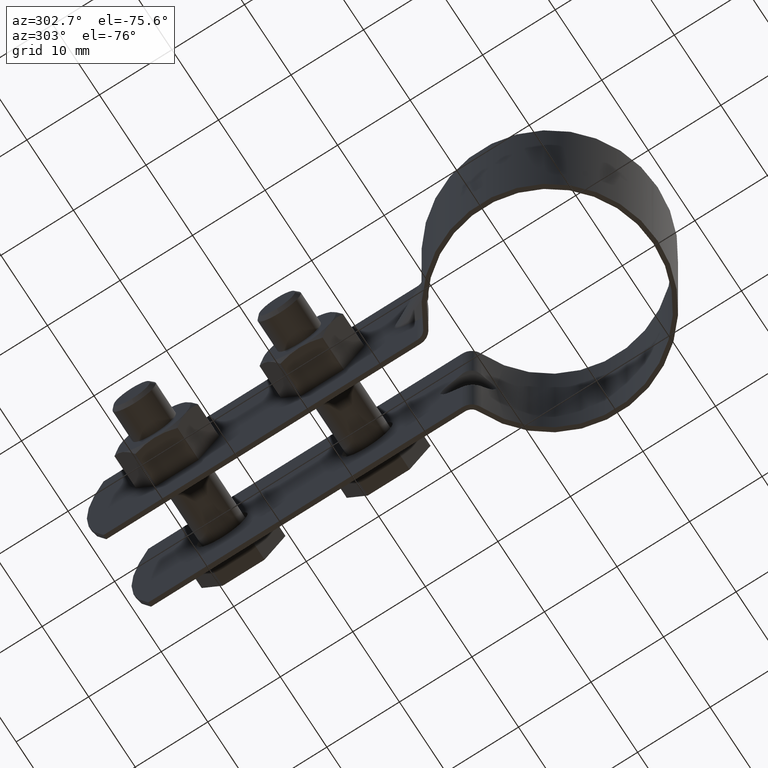
[diagram: clean part render]
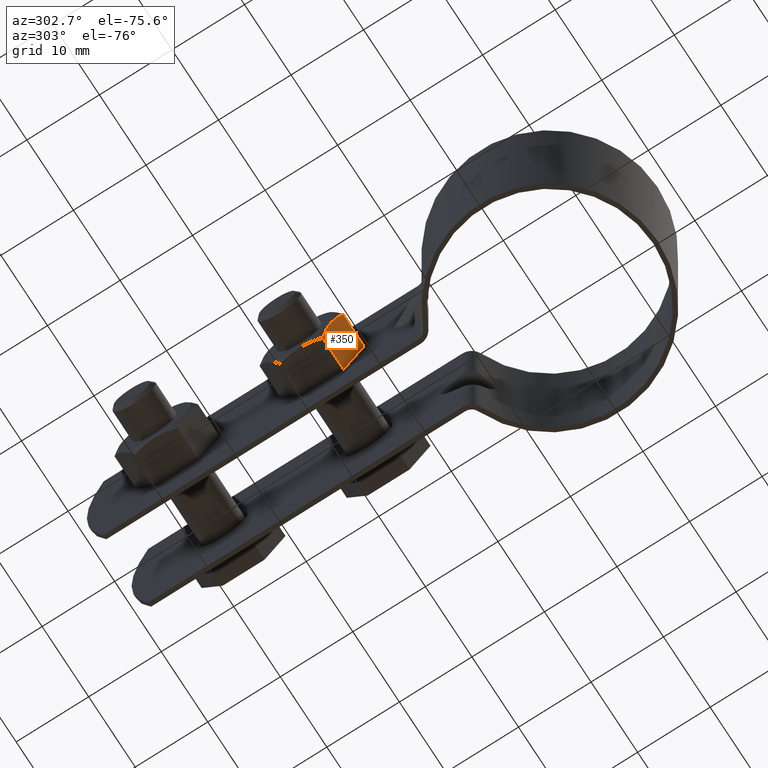
[diagram: same view with one face highlighted and labeled with its STEP entity id]
A machine part, auxiliary view. The second image highlights one B-rep face of the part: STEP entity #350.
In plain terms, the highlighted planar face has unit normal (0, 0.866, 0.5).
Its self-contained STEP definition (entity closure, byte-faithful):
#350 = ADVANCED_FACE( '', ( #558 ), #559, .F. );
#558 = FACE_OUTER_BOUND( '', #790, .T. );
#559 = PLANE( '', #791 );
#790 = EDGE_LOOP( '', ( #1490, #1491, #1492, #1493, #1494 ) );
#791 = AXIS2_PLACEMENT_3D( '', #1495, #1496, #1497 );
#1490 = ORIENTED_EDGE( '', *, *, #1795, .F. );
#1491 = ORIENTED_EDGE( '', *, *, #1828, .F. );
#1492 = ORIENTED_EDGE( '', *, *, #1829, .F. );
#1493 = ORIENTED_EDGE( '', *, *, #1802, .F. );
#1494 = ORIENTED_EDGE( '', *, *, #1822, .F. );
#1495 = CARTESIAN_POINT( '', ( -5.10000000000003, 22.2894652723808, -8.67361737988404E-016 ) );
#1496 = DIRECTION( '', ( 0.000000000000000, 0.866025403784439, 0.500000000000000 ) );
#1497 = DIRECTION( '', ( 0.000000000000000, -0.500000000000000, 0.866025403784439 ) );
#1795 = EDGE_CURVE( '', #2145, #2158, #2159, .T. );
#1802 = EDGE_CURVE( '', #2169, #2171, #2172, .T. );
#1822 = EDGE_CURVE( '', #2158, #2169, #2202, .T. );
#1828 = EDGE_CURVE( '', #2210, #2145, #2211, .T. );
#1829 = EDGE_CURVE( '', #2171, #2210, #2212, .F. );
#2145 = VERTEX_POINT( '', #2767 );
#2158 = VERTEX_POINT( '', #2786 );
#2159 = B_SPLINE_CURVE_WITH_KNOTS( '', 3, ( #2787, #2788, #2789, #2790, #2791, #2792, #2793, #2794 ), .UNSPECIFIED., .F., .F., ( 4, 2, 2, 4 ), ( 0.00287277010488779, 0.00358771851305245, 0.00430266692121712, 0.00573256373754644 ), .UNSPECIFIED. );
#2169 = VERTEX_POINT( '', #2805 );
#2171 = VERTEX_POINT( '', #2807 );
#2172 = LINE( '', #2808, #2809 );
#2202 = LINE( '', #2873, #2874 );
#2210 = VERTEX_POINT( '', #2894 );
#2211 = B_SPLINE_CURVE_WITH_KNOTS( '', 3, ( #2895, #2896, #2897, #2898 ), .UNSPECIFIED., .F., .F., ( 4, 4 ), ( 7.22330826799220E-007, 0.00287277010488779 ), .UNSPECIFIED. );
#2212 = LINE( '', #2899, #2900 );
#2767 = CARTESIAN_POINT( '', ( -10.0999999999999, 23.7328409453548, -2.49999999999993 ) );
#2786 = CARTESIAN_POINT( '', ( -9.66698729810768, 22.3131138589047, -0.0409605533867492 ) );
#2787 = CARTESIAN_POINT( '', ( -10.0999999999999, 23.7328409453548, -2.49999999999993 ) );
#2788 = CARTESIAN_POINT( '', ( -10.0999999999999, 23.6125294660092, -2.29161440503969 ) );
#2789 = CARTESIAN_POINT( '', ( -10.0898108720831, 23.4915228102551, -2.08202472921952 ) );
#2790 = CARTESIAN_POINT( '', ( -10.0502996398892, 23.2521145917999, -1.66735753110550 ) );
#2791 = CARTESIAN_POINT( '', ( -10.0210226875359, 23.1331980038411, -1.46138795889826 ) );
#2792 = CARTESIAN_POINT( '', ( -9.90799451667562, 22.7785323403478, -0.847089010027619 ) );
#2793 = CARTESIAN_POINT( '', ( -9.79913188755693, 22.5448602600390, -0.442357094622568 ) );
#2794 = CARTESIAN_POINT( '', ( -9.66698729810769, 22.3131138589047, -0.0409605533867479 ) );
#2805 = CARTESIAN_POINT( '', ( -5.10000000000003, 22.3131138589047, -0.0409605533867475 ) );
#2807 = CARTESIAN_POINT( '', ( -5.10000000000003, 25.1525680318048, -4.95903944661311 ) );
#2808 = CARTESIAN_POINT( '', ( -5.10000000000003, 25.1703409453547, -4.98982303588012 ) );
#2809 = VECTOR( '', #3290, 1000.00000000000 );
#2873 = CARTESIAN_POINT( '', ( -5.10000000000003, 22.3131138589047, -0.0409605533867494 ) );
#2874 = VECTOR( '', #3315, 1000.00000000000 );
#2894 = CARTESIAN_POINT( '', ( -9.66698729810768, 25.1525680318048, -4.95903944661311 ) );
#2895 = CARTESIAN_POINT( '', ( -9.66698729810769, 25.1525680318048, -4.95903944661311 ) );
#2896 = CARTESIAN_POINT( '', ( -9.93203573458736, 24.6877436940363, -4.15394007700352 ) );
#2897 = CARTESIAN_POINT( '', ( -10.0999999999999, 24.2161489889874, -3.33711408727835 ) );
#2898 = CARTESIAN_POINT( '', ( -10.0999999999999, 23.7328409453548, -2.49999999999993 ) );
#2899 = CARTESIAN_POINT( '', ( -5.10000000000003, 25.1525680318048, -4.95903944661311 ) );
#2900 = VECTOR( '', #3321, 1000.00000000000 );
#3290 = DIRECTION( '', ( 0.000000000000000, 0.500000000000000, -0.866025403784439 ) );
#3315 = DIRECTION( '', ( 1.00000000000000, 0.000000000000000, 0.000000000000000 ) );
#3321 = DIRECTION( '', ( 1.00000000000000, 0.000000000000000, 0.000000000000000 ) );